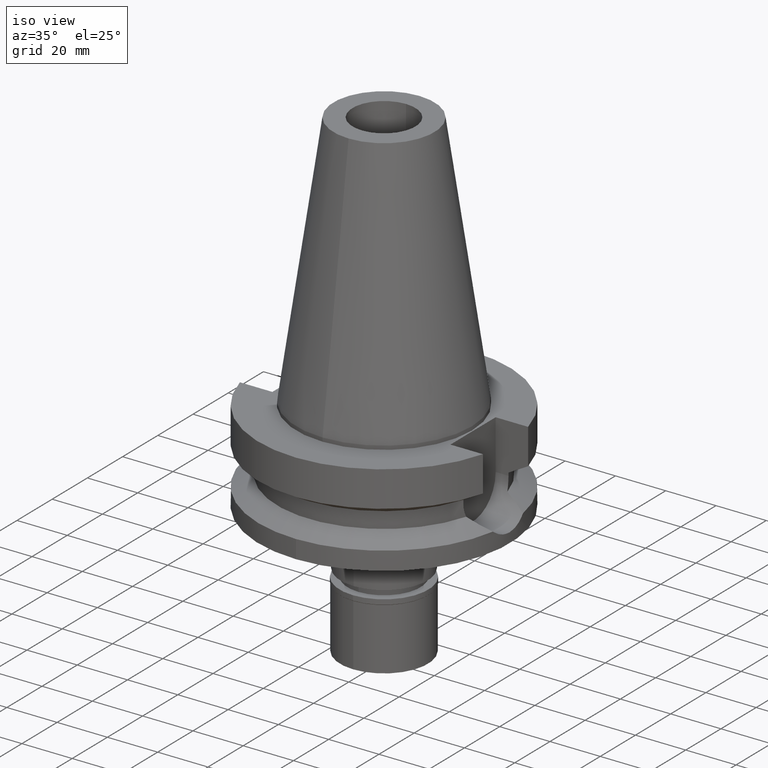
[diagram: clean part render]
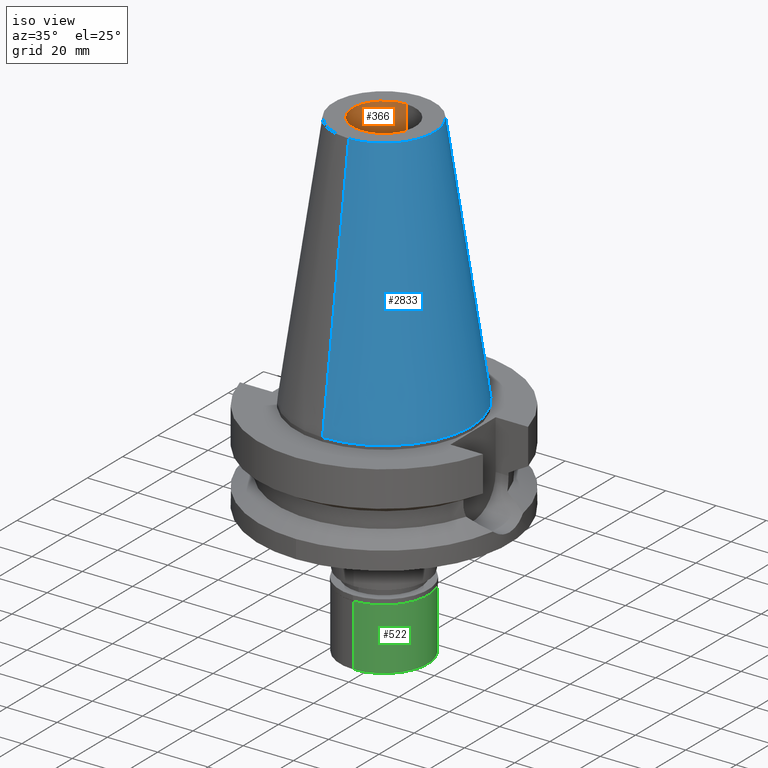
[diagram: same view with three faces highlighted in distinct colors, each labeled with its STEP entity id]
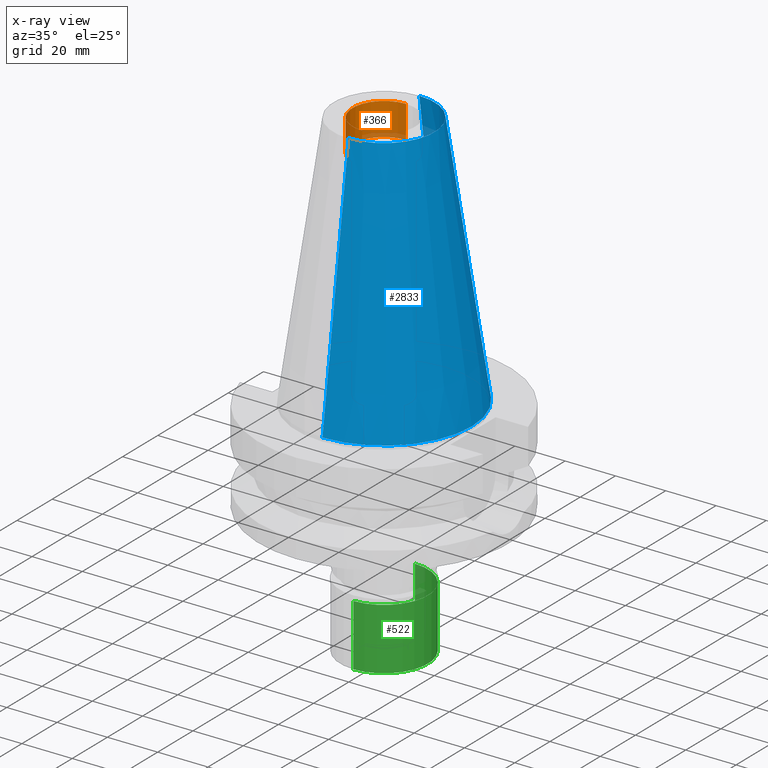
[diagram: x-ray of the same camera — body ghosted, the three highlighted faces saturated]
A machine part, iso view with three faces highlighted in distinct colors.
The next image is the same camera in x-ray (body ghosted, the three faces saturated) — at least one of them is partly hidden behind the body in this view.
Their STEP definitions:

[orange] entity #366 — the highlighted cylindrical surface (partial cylindrical patch) has radius 12.5 mm, axis along (0, 0, -1).
#50 = CIRCLE ( 'NONE', #1025, 12.50000000000000000 ) ;
#82 = CARTESIAN_POINT ( 'NONE',  ( 0.0000000000000000000, 2.582045311321999724E-14, 101.7999999999999972 ) ) ;
#366 = ADVANCED_FACE ( 'NONE', ( #2482 ), #1989, .F. ) ;
#386 = VERTEX_POINT ( 'NONE', #2711 ) ;
#511 = DIRECTION ( 'NONE',  ( 0.0000000000000000000, 1.000000000000000000, 0.0000000000000000000 ) ) ;
#687 = VECTOR ( 'NONE', #1194, 1000.000000000000000 ) ;
#775 = DIRECTION ( 'NONE',  ( 0.0000000000000000000, 0.0000000000000000000, -1.000000000000000000 ) ) ;
#1025 = AXIS2_PLACEMENT_3D ( 'NONE', #82, #1963, #511 ) ;
#1054 = CARTESIAN_POINT ( 'NONE',  ( 0.0000000000000000000, 12.50000000000000000, 88.79999999999999716 ) ) ;
#1089 = VECTOR ( 'NONE', #2721, 1000.000000000000000 ) ;
#1137 = AXIS2_PLACEMENT_3D ( 'NONE', #1786, #775, #2955 ) ;
#1194 = DIRECTION ( 'NONE',  ( 0.0000000000000000000, 0.0000000000000000000, 1.000000000000000000 ) ) ;
#1254 = DIRECTION ( 'NONE',  ( 0.0000000000000000000, -1.000000000000000000, 0.0000000000000000000 ) ) ;
#1302 = AXIS2_PLACEMENT_3D ( 'NONE', #2496, #1542, #1254 ) ;
#1341 = ORIENTED_EDGE ( 'NONE', *, *, #2690, .T. ) ;
#1492 = EDGE_CURVE ( 'NONE', #386, #2660, #2136, .T. ) ;
#1542 = DIRECTION ( 'NONE',  ( 0.0000000000000000000, 0.0000000000000000000, -1.000000000000000000 ) ) ;
#1552 = CARTESIAN_POINT ( 'NONE',  ( 0.0000000000000000000, 12.50000000000000000, 101.7999999999999972 ) ) ;
#1564 = ORIENTED_EDGE ( 'NONE', *, *, #1661, .T. ) ;
#1578 = VERTEX_POINT ( 'NONE', #2172 ) ;
#1661 = EDGE_CURVE ( 'NONE', #1578, #1781, #1755, .T. ) ;
#1755 = LINE ( 'NONE', #1054, #1089 ) ;
#1781 = VERTEX_POINT ( 'NONE', #1552 ) ;
#1786 = CARTESIAN_POINT ( 'NONE',  ( 0.0000000000000000000, 2.582045311321999724E-14, 110.8399999999999892 ) ) ;
#1904 = ORIENTED_EDGE ( 'NONE', *, *, #2516, .T. ) ;
#1963 = DIRECTION ( 'NONE',  ( 0.0000000000000000000, 0.0000000000000000000, 1.000000000000000000 ) ) ;
#1989 = CYLINDRICAL_SURFACE ( 'NONE', #1137, 12.50000000000000000 ) ;
#2136 = LINE ( 'NONE', #2846, #687 ) ;
#2172 = CARTESIAN_POINT ( 'NONE',  ( 0.0000000000000000000, 12.50000000000000000, 88.79999999999999716 ) ) ;
#2276 = CARTESIAN_POINT ( 'NONE',  ( 0.0000000000000000000, -12.50000000000000000, 101.7999999999999972 ) ) ;
#2425 = EDGE_LOOP ( 'NONE', ( #1904, #2928, #1341, #1564 ) ) ;
#2482 = FACE_OUTER_BOUND ( 'NONE', #2425, .T. ) ;
#2496 = CARTESIAN_POINT ( 'NONE',  ( 0.0000000000000000000, 2.582045311321999724E-14, 88.79999999999999716 ) ) ;
#2516 = EDGE_CURVE ( 'NONE', #1781, #2660, #50, .T. ) ;
#2660 = VERTEX_POINT ( 'NONE', #2276 ) ;
#2690 = EDGE_CURVE ( 'NONE', #386, #1578, #3007, .T. ) ;
#2711 = CARTESIAN_POINT ( 'NONE',  ( 0.0000000000000000000, -12.50000000000000000, 88.79999999999999716 ) ) ;
#2721 = DIRECTION ( 'NONE',  ( 0.0000000000000000000, 0.0000000000000000000, 1.000000000000000000 ) ) ;
#2846 = CARTESIAN_POINT ( 'NONE',  ( 0.0000000000000000000, -12.50000000000000000, 88.79999999999999716 ) ) ;
#2928 = ORIENTED_EDGE ( 'NONE', *, *, #1492, .F. ) ;
#2955 = DIRECTION ( 'NONE',  ( 0.0000000000000000000, -1.000000000000000000, 0.0000000000000000000 ) ) ;
#3007 = CIRCLE ( 'NONE', #1302, 12.50000000000000000 ) ;

[blue] entity #2833 — the highlighted conical surface has half-angle 8.297 deg.
#69 = VECTOR ( 'NONE', #2628, 1000.000000000000114 ) ;
#145 = DIRECTION ( 'NONE',  ( 0.0000000000000000000, 0.1443043893538948075, -0.9895333461855641000 ) ) ;
#155 = FACE_OUTER_BOUND ( 'NONE', #434, .T. ) ;
#223 = CARTESIAN_POINT ( 'NONE',  ( 0.0000000000000000000, -20.07942971896000017, 101.7999999999999972 ) ) ;
#237 = EDGE_CURVE ( 'NONE', #1428, #1269, #266, .T. ) ;
#266 = LINE ( 'NONE', #280, #69 ) ;
#280 = CARTESIAN_POINT ( 'NONE',  ( 0.0000000000000000000, -20.07942971896000017, 101.7999999999999972 ) ) ;
#434 = EDGE_LOOP ( 'NONE', ( #796, #3027, #2481, #1605 ) ) ;
#454 = DIRECTION ( 'NONE',  ( 0.0000000000000000000, 0.0000000000000000000, -1.000000000000000000 ) ) ;
#487 = CARTESIAN_POINT ( 'NONE',  ( 0.0000000000000000000, 1.847992019912999597E-14, 101.7999999999999972 ) ) ;
#545 = CIRCLE ( 'NONE', #1287, 20.07942971896000017 ) ;
#556 = LINE ( 'NONE', #2985, #1546 ) ;
#574 = CARTESIAN_POINT ( 'NONE',  ( 0.0000000000000000000, 34.92499999999999716, 4.263256414560999963E-13 ) ) ;
#796 = ORIENTED_EDGE ( 'NONE', *, *, #1219, .T. ) ;
#991 = CARTESIAN_POINT ( 'NONE',  ( 0.0000000000000000000, -34.92499999999999716, 4.263256414560999963E-13 ) ) ;
#1065 = CONICAL_SURFACE ( 'NONE', #1150, 27.50221485948000222, 0.1448099680379422438 ) ;
#1078 = DIRECTION ( 'NONE',  ( 0.0000000000000000000, 0.0000000000000000000, -1.000000000000000000 ) ) ;
#1097 = AXIS2_PLACEMENT_3D ( 'NONE', #2113, #454, #1869 ) ;
#1150 = AXIS2_PLACEMENT_3D ( 'NONE', #2300, #1078, #2062 ) ;
#1219 = EDGE_CURVE ( 'NONE', #2194, #1428, #545, .T. ) ;
#1269 = VERTEX_POINT ( 'NONE', #991 ) ;
#1287 = AXIS2_PLACEMENT_3D ( 'NONE', #487, #2382, #1940 ) ;
#1428 = VERTEX_POINT ( 'NONE', #223 ) ;
#1546 = VECTOR ( 'NONE', #145, 1000.000000000000114 ) ;
#1605 = ORIENTED_EDGE ( 'NONE', *, *, #2761, .F. ) ;
#1810 = CARTESIAN_POINT ( 'NONE',  ( 0.0000000000000000000, 20.07942971896000017, 101.7999999999999972 ) ) ;
#1869 = DIRECTION ( 'NONE',  ( 0.0000000000000000000, 1.000000000000000000, 0.0000000000000000000 ) ) ;
#1940 = DIRECTION ( 'NONE',  ( 0.0000000000000000000, 1.000000000000000000, 0.0000000000000000000 ) ) ;
#1951 = EDGE_CURVE ( 'NONE', #2236, #1269, #2401, .T. ) ;
#2062 = DIRECTION ( 'NONE',  ( 0.0000000000000000000, -1.000000000000000000, 0.0000000000000000000 ) ) ;
#2113 = CARTESIAN_POINT ( 'NONE',  ( 0.0000000000000000000, 1.847992019912999597E-14, 3.979039320256999774E-13 ) ) ;
#2194 = VERTEX_POINT ( 'NONE', #1810 ) ;
#2236 = VERTEX_POINT ( 'NONE', #574 ) ;
#2300 = CARTESIAN_POINT ( 'NONE',  ( 0.0000000000000000000, 1.847992019912999597E-14, 50.89999999999999858 ) ) ;
#2382 = DIRECTION ( 'NONE',  ( 0.0000000000000000000, 0.0000000000000000000, -1.000000000000000000 ) ) ;
#2401 = CIRCLE ( 'NONE', #1097, 34.92499999999999716 ) ;
#2481 = ORIENTED_EDGE ( 'NONE', *, *, #1951, .F. ) ;
#2628 = DIRECTION ( 'NONE',  ( 0.0000000000000000000, -0.1443043893538948075, -0.9895333461855641000 ) ) ;
#2761 = EDGE_CURVE ( 'NONE', #2194, #2236, #556, .T. ) ;
#2833 = ADVANCED_FACE ( 'NONE', ( #155 ), #1065, .T. ) ;
#2985 = CARTESIAN_POINT ( 'NONE',  ( 0.0000000000000000000, 20.07942971896000017, 101.7999999999999972 ) ) ;
#3027 = ORIENTED_EDGE ( 'NONE', *, *, #237, .T. ) ;

[green] entity #522 — the highlighted cylindrical surface (partial cylindrical patch) has radius 17.5 mm, axis along (0, 0, -1).
#54 = CARTESIAN_POINT ( 'NONE',  ( 0.0000000000000000000, -17.50000000000000000, -2.100000000000000089 ) ) ;
#122 = FACE_OUTER_BOUND ( 'NONE', #476, .T. ) ;
#149 = LINE ( 'NONE', #54, #600 ) ;
#335 = VERTEX_POINT ( 'NONE', #709 ) ;
#344 = DIRECTION ( 'NONE',  ( 0.0000000000000000000, 0.0000000000000000000, -1.000000000000000000 ) ) ;
#447 = CARTESIAN_POINT ( 'NONE',  ( 0.0000000000000000000, 17.50000000000000000, -26.70000000000000284 ) ) ;
#476 = EDGE_LOOP ( 'NONE', ( #754, #1355, #1041, #1727 ) ) ;
#483 = DIRECTION ( 'NONE',  ( 0.0000000000000000000, 1.000000000000000000, 0.0000000000000000000 ) ) ;
#501 = AXIS2_PLACEMENT_3D ( 'NONE', #1882, #1868, #483 ) ;
#522 = ADVANCED_FACE ( 'NONE', ( #122 ), #1035, .T. ) ;
#547 = CIRCLE ( 'NONE', #2043, 17.50000000000000000 ) ;
#557 = EDGE_CURVE ( 'NONE', #335, #2398, #1236, .T. ) ;
#600 = VECTOR ( 'NONE', #344, 1000.000000000000000 ) ;
#709 = CARTESIAN_POINT ( 'NONE',  ( 0.0000000000000000000, 17.50000000000000000, -2.100000000000000089 ) ) ;
#754 = ORIENTED_EDGE ( 'NONE', *, *, #2029, .T. ) ;
#947 = CARTESIAN_POINT ( 'NONE',  ( 0.0000000000000000000, -17.50000000000000000, -26.70000000000000284 ) ) ;
#1024 = CARTESIAN_POINT ( 'NONE',  ( 0.0000000000000000000, -17.50000000000000000, -2.100000000000000089 ) ) ;
#1035 = CYLINDRICAL_SURFACE ( 'NONE', #2443, 17.50000000000000000 ) ;
#1041 = ORIENTED_EDGE ( 'NONE', *, *, #1832, .T. ) ;
#1057 = DIRECTION ( 'NONE',  ( 0.0000000000000000000, 0.0000000000000000000, -1.000000000000000000 ) ) ;
#1236 = LINE ( 'NONE', #2449, #2542 ) ;
#1355 = ORIENTED_EDGE ( 'NONE', *, *, #2205, .T. ) ;
#1514 = DIRECTION ( 'NONE',  ( 0.0000000000000000000, -1.000000000000000000, 0.0000000000000000000 ) ) ;
#1527 = VERTEX_POINT ( 'NONE', #947 ) ;
#1621 = DIRECTION ( 'NONE',  ( 0.0000000000000000000, -1.000000000000000000, 0.0000000000000000000 ) ) ;
#1727 = ORIENTED_EDGE ( 'NONE', *, *, #557, .F. ) ;
#1832 = EDGE_CURVE ( 'NONE', #1527, #2398, #547, .T. ) ;
#1868 = DIRECTION ( 'NONE',  ( 0.0000000000000000000, 0.0000000000000000000, -1.000000000000000000 ) ) ;
#1882 = CARTESIAN_POINT ( 'NONE',  ( 0.0000000000000000000, 0.0000000000000000000, -2.100000000000000089 ) ) ;
#2029 = EDGE_CURVE ( 'NONE', #335, #2726, #2611, .T. ) ;
#2043 = AXIS2_PLACEMENT_3D ( 'NONE', #3029, #2065, #1621 ) ;
#2065 = DIRECTION ( 'NONE',  ( 0.0000000000000000000, 0.0000000000000000000, 1.000000000000000000 ) ) ;
#2205 = EDGE_CURVE ( 'NONE', #2726, #1527, #149, .T. ) ;
#2398 = VERTEX_POINT ( 'NONE', #447 ) ;
#2443 = AXIS2_PLACEMENT_3D ( 'NONE', #2938, #1057, #1514 ) ;
#2449 = CARTESIAN_POINT ( 'NONE',  ( 0.0000000000000000000, 17.50000000000000000, -2.100000000000000089 ) ) ;
#2542 = VECTOR ( 'NONE', #2735, 1000.000000000000000 ) ;
#2611 = CIRCLE ( 'NONE', #501, 17.50000000000000000 ) ;
#2726 = VERTEX_POINT ( 'NONE', #1024 ) ;
#2735 = DIRECTION ( 'NONE',  ( 0.0000000000000000000, 0.0000000000000000000, -1.000000000000000000 ) ) ;
#2938 = CARTESIAN_POINT ( 'NONE',  ( 0.0000000000000000000, 0.0000000000000000000, 0.0000000000000000000 ) ) ;
#3029 = CARTESIAN_POINT ( 'NONE',  ( 0.0000000000000000000, 0.0000000000000000000, -26.70000000000000284 ) ) ;